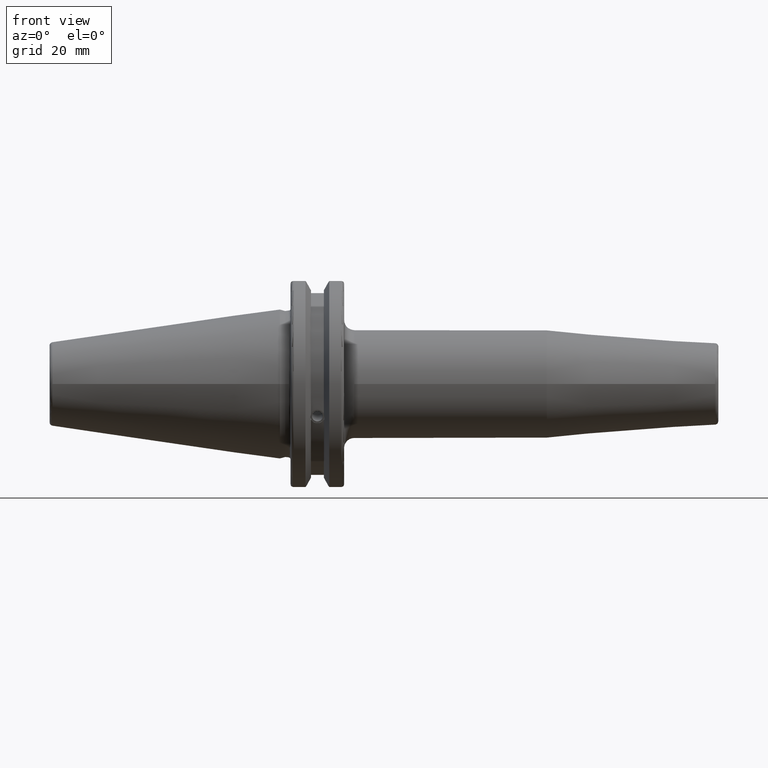
[diagram: clean part render]
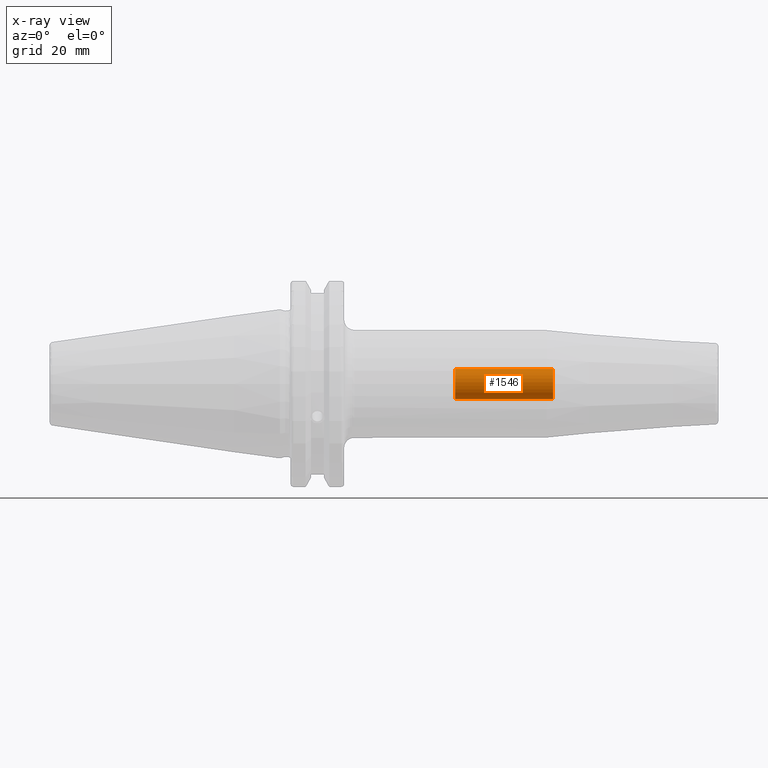
[diagram: x-ray — body ghosted, one internal face saturated and labeled with its STEP entity id]
A machine part, front view, then the same camera in x-ray: the body is ghosted and one INTERNAL B-rep face — a face not visible from any outside direction — is saturated and labeled: STEP entity #1546.
In plain terms, the highlighted cylindrical surface (bore or boss wall) has radius 4.4587 mm, axis along (1, 0, 0).
Its self-contained STEP definition (entity closure, byte-faithful):
#147=CYLINDRICAL_SURFACE('',#1676,4.458734);
#185=FACE_OUTER_BOUND('',#280,.T.);
#280=EDGE_LOOP('',(#1094,#1095,#1096,#1097,#1098));
#391=LINE('',#2381,#489);
#489=VECTOR('',#1910,4.458734);
#585=CIRCLE('',#1677,4.458734);
#586=CIRCLE('',#1678,4.458734);
#587=CIRCLE('',#1679,4.458734);
#672=VERTEX_POINT('',#2378);
#673=VERTEX_POINT('',#2380);
#674=VERTEX_POINT('',#2382);
#836=EDGE_CURVE('',#672,#672,#585,.T.);
#837=EDGE_CURVE('',#672,#673,#391,.T.);
#838=EDGE_CURVE('',#674,#673,#586,.T.);
#839=EDGE_CURVE('',#673,#674,#587,.T.);
#1094=ORIENTED_EDGE('',*,*,#836,.F.);
#1095=ORIENTED_EDGE('',*,*,#837,.T.);
#1096=ORIENTED_EDGE('',*,*,#838,.F.);
#1097=ORIENTED_EDGE('',*,*,#839,.F.);
#1098=ORIENTED_EDGE('',*,*,#837,.F.);
#1546=ADVANCED_FACE('',(#185),#147,.F.);
#1676=AXIS2_PLACEMENT_3D('',#2377,#1906,#1907);
#1677=AXIS2_PLACEMENT_3D('',#2379,#1908,#1909);
#1678=AXIS2_PLACEMENT_3D('',#2383,#1911,#1912);
#1679=AXIS2_PLACEMENT_3D('',#2384,#1913,#1914);
#1906=DIRECTION('center_axis',(1.,0.,0.));
#1907=DIRECTION('ref_axis',(0.,0.,-1.));
#1908=DIRECTION('center_axis',(-1.,0.,0.));
#1909=DIRECTION('ref_axis',(0.,0.,-1.));
#1910=DIRECTION('',(-1.,0.,0.));
#1911=DIRECTION('center_axis',(1.,0.,0.));
#1912=DIRECTION('ref_axis',(0.,0.,-1.));
#1913=DIRECTION('center_axis',(1.,0.,0.));
#1914=DIRECTION('ref_axis',(0.,0.,-1.));
#2377=CARTESIAN_POINT('Origin',(-135.950067296382,0.,0.));
#2378=CARTESIAN_POINT('',(81.,-5.46037432134947E-16,4.458734));
#2379=CARTESIAN_POINT('Origin',(81.,0.,0.));
#2380=CARTESIAN_POINT('',(51.9765163523598,-5.46037432134947E-16,4.458734));
#2381=CARTESIAN_POINT('',(-135.950067296382,-5.46037432134947E-16,4.458734));
#2382=CARTESIAN_POINT('',(51.9765163523599,-5.46037432134951E-16,-4.45873400000003));
#2383=CARTESIAN_POINT('Origin',(51.9765163523598,0.,0.));
#2384=CARTESIAN_POINT('Origin',(51.9765163523598,0.,0.));